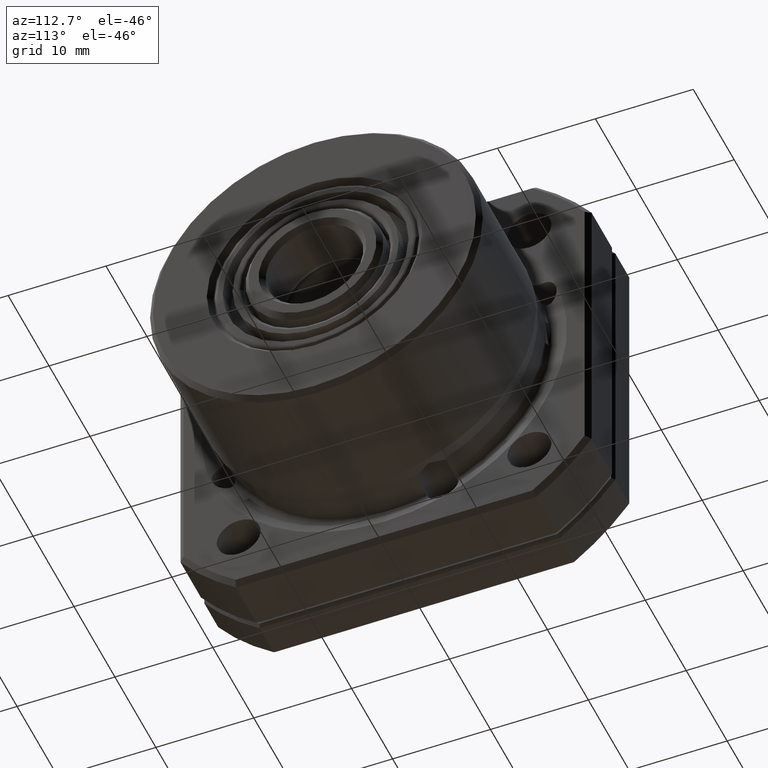
[diagram: clean part render]
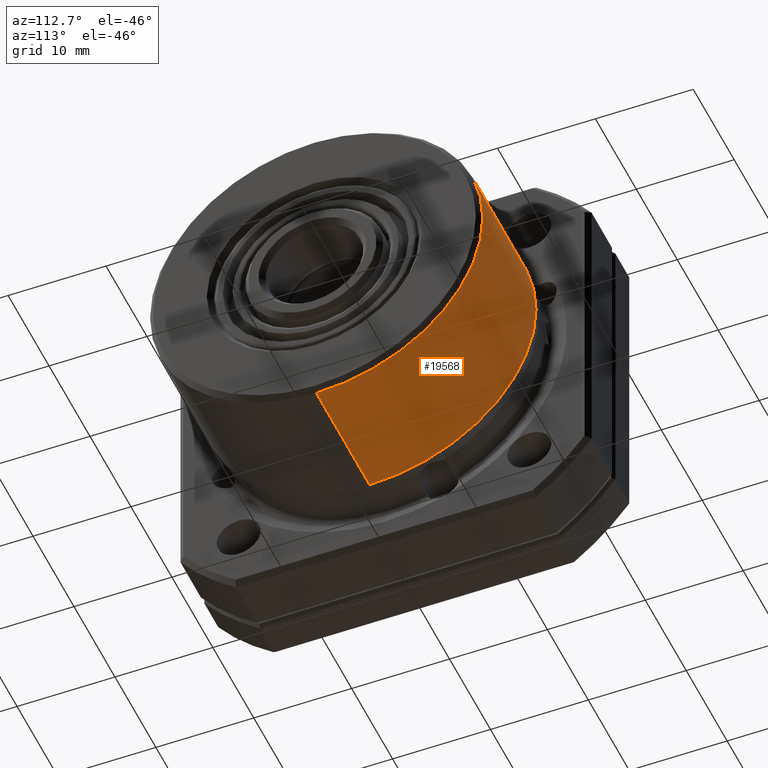
[diagram: same view with one face highlighted and labeled with its STEP entity id]
A machine part, auxiliary view. The second image highlights one B-rep face of the part: STEP entity #19568.
In plain terms, the highlighted cylindrical surface (partial cylindrical patch) has radius 17 mm, axis along (-1, -0, -0).
Its self-contained STEP definition (entity closure, byte-faithful):
#1333 = CARTESIAN_POINT ( 'NONE',  ( 9.499999999999994700, 0.0000000000000000000, 0.0000000000000000000 ) ) ;
#1379 = DIRECTION ( 'NONE',  ( 0.0000000000000000000, 0.0000000000000000000, 1.000000000000000000 ) ) ;
#1380 = DIRECTION ( 'NONE',  ( -1.000000000000000000, -0.0000000000000000000, -0.0000000000000000000 ) ) ;
#1381 = AXIS2_PLACEMENT_3D ( 'NONE', #1333, #1380, #1379 ) ;
#1382 = CIRCLE ( 'NONE', #1381, 17.00000000000000000 ) ;
#1424 = DIRECTION ( 'NONE',  ( -1.000000000000000000, -0.0000000000000000000, -0.0000000000000000000 ) ) ;
#1425 = VECTOR ( 'NONE', #1424, 1000.000000000000000 ) ;
#1426 = CARTESIAN_POINT ( 'NONE',  ( -94.46891865289678900, 0.0000000000000000000, 17.00000000000000000 ) ) ;
#1427 = LINE ( 'NONE', #1426, #1425 ) ;
#4078 = CARTESIAN_POINT ( 'NONE',  ( 9.499999999999994700, 0.0000000000000000000, 17.00000000000000000 ) ) ;
#4137 = CARTESIAN_POINT ( 'NONE',  ( 9.499999999999994700, 2.081830801498041700E-015, -17.00000000000000000 ) ) ;
#14629 = DIRECTION ( 'NONE',  ( -1.000000000000000000, -0.0000000000000000000, -0.0000000000000000000 ) ) ;
#14630 = VECTOR ( 'NONE', #14629, 1000.000000000000000 ) ;
#14631 = CARTESIAN_POINT ( 'NONE',  ( -94.46891865289678900, 2.081830801498041700E-015, -17.00000000000000000 ) ) ;
#14637 = LINE ( 'NONE', #14631, #14630 ) ;
#14739 = CARTESIAN_POINT ( 'NONE',  ( 22.50000000000003600, 2.081830801498041700E-015, -17.00000000000000000 ) ) ;
#14742 = DIRECTION ( 'NONE',  ( 0.0000000000000000000, 0.0000000000000000000, 1.000000000000000000 ) ) ;
#14743 = DIRECTION ( 'NONE',  ( -1.000000000000000000, -0.0000000000000000000, -0.0000000000000000000 ) ) ;
#14744 = CARTESIAN_POINT ( 'NONE',  ( 22.50000000000003600, 0.0000000000000000000, 0.0000000000000000000 ) ) ;
#14745 = AXIS2_PLACEMENT_3D ( 'NONE', #14744, #14743, #14742 ) ;
#14746 = CIRCLE ( 'NONE', #14745, 17.00000000000000000 ) ;
#14747 = CARTESIAN_POINT ( 'NONE',  ( 22.50000000000003600, 0.0000000000000000000, 17.00000000000000000 ) ) ;
#14748 = DIRECTION ( 'NONE',  ( 0.0000000000000000000, 0.0000000000000000000, 1.000000000000000000 ) ) ;
#14749 = AXIS2_PLACEMENT_3D ( 'NONE', #14762, #14764, #14748 ) ;
#14762 = CARTESIAN_POINT ( 'NONE',  ( -94.46891865289678900, 0.0000000000000000000, 0.0000000000000000000 ) ) ;
#14763 = CYLINDRICAL_SURFACE ( 'NONE', #14749, 17.00000000000000000 ) ;
#14764 = DIRECTION ( 'NONE',  ( -1.000000000000000000, -0.0000000000000000000, -0.0000000000000000000 ) ) ;
#14765 = FACE_OUTER_BOUND ( 'NONE', #15295, .T. ) ;
#15295 = EDGE_LOOP ( 'NONE', ( #19506, #19512, #19502, #15378 ) ) ;
#15356 = EDGE_CURVE ( 'NONE', #16935, #16982, #1382, .T. ) ;
#15378 = ORIENTED_EDGE ( 'NONE', *, *, #15406, .F. ) ;
#15406 = EDGE_CURVE ( 'NONE', #19544, #16935, #1427, .T. ) ;
#16935 = VERTEX_POINT ( 'NONE', #4078 ) ;
#16982 = VERTEX_POINT ( 'NONE', #4137 ) ;
#19502 = ORIENTED_EDGE ( 'NONE', *, *, #15356, .F. ) ;
#19506 = ORIENTED_EDGE ( 'NONE', *, *, #19546, .T. ) ;
#19510 = EDGE_CURVE ( 'NONE', #19551, #16982, #14637, .T. ) ;
#19512 = ORIENTED_EDGE ( 'NONE', *, *, #19510, .T. ) ;
#19544 = VERTEX_POINT ( 'NONE', #14747 ) ;
#19546 = EDGE_CURVE ( 'NONE', #19544, #19551, #14746, .T. ) ;
#19551 = VERTEX_POINT ( 'NONE', #14739 ) ;
#19568 = ADVANCED_FACE ( 'NONE', ( #14765 ), #14763, .T. ) ;